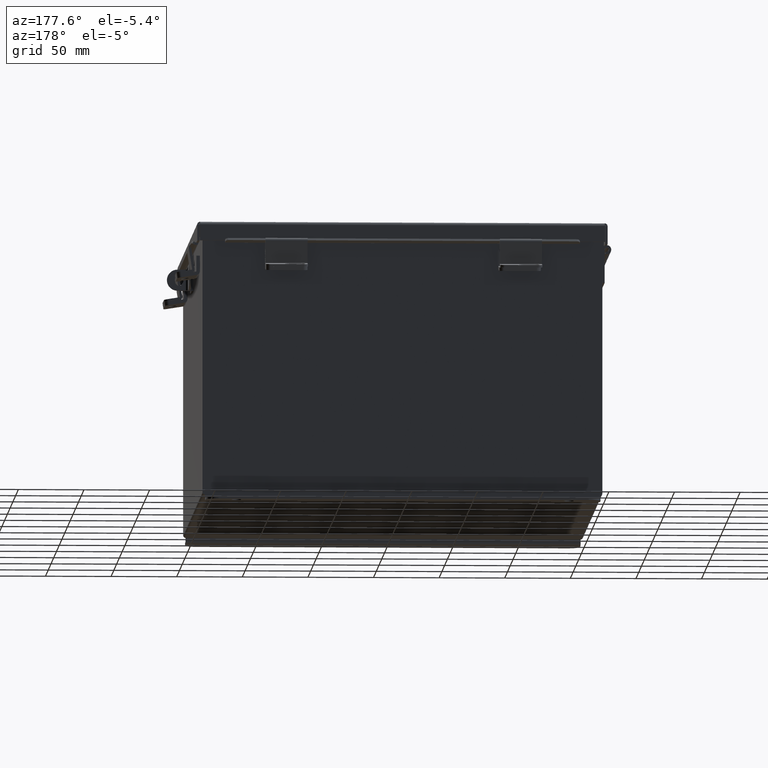
[diagram: clean part render]
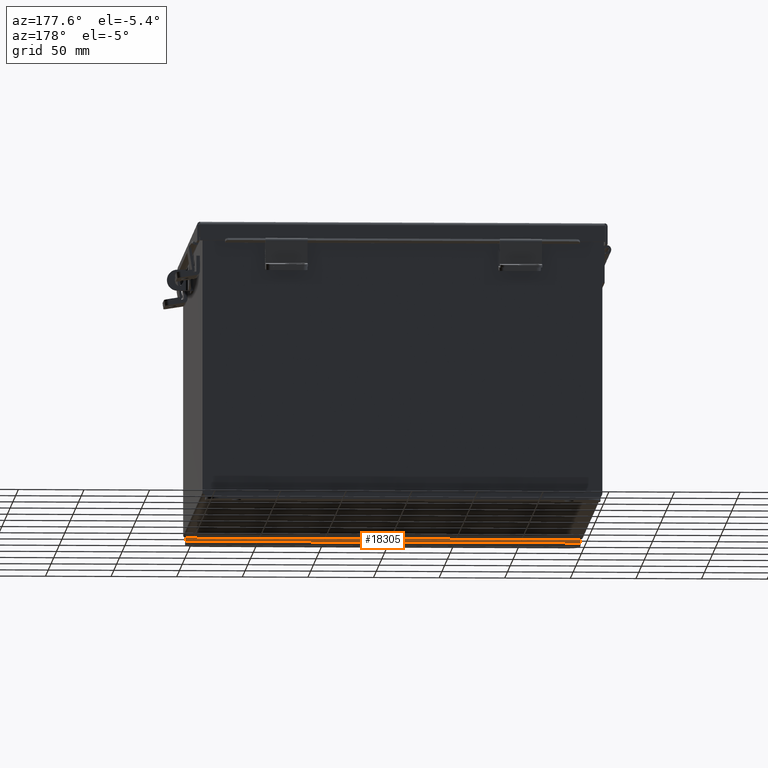
[diagram: same view with one face highlighted and labeled with its STEP entity id]
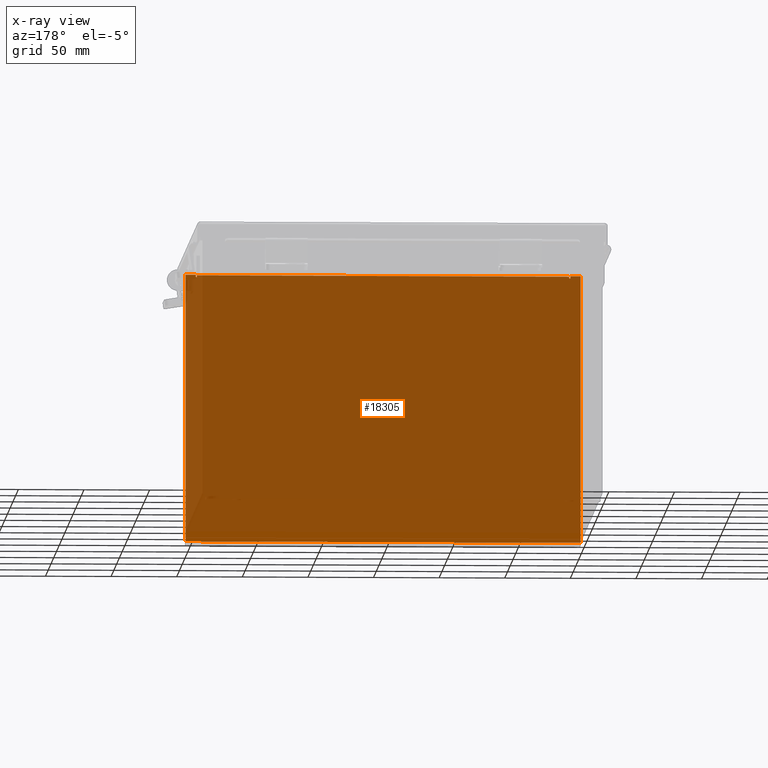
[diagram: x-ray of the same camera — body ghosted, the highlighted face saturated]
A machine part, auxiliary view. The second image highlights one B-rep face of the part: STEP entity #18305.
The next image is the same camera in x-ray: the body ghosted, the highlighted face saturated — about 96% of this face is hidden behind the body in this view.
In plain terms, the highlighted planar face has unit normal (-0, 1, -0).
Its self-contained STEP definition (entity closure, byte-faithful):
#339 = ORIENTED_EDGE ( 'NONE', *, *, #11427, .F. ) ;
#697 = EDGE_CURVE ( 'NONE', #5141, #15063, #16202, .T. ) ;
#810 = ORIENTED_EDGE ( 'NONE', *, *, #1234, .F. ) ;
#881 = ORIENTED_EDGE ( 'NONE', *, *, #1898, .F. ) ;
#1234 = EDGE_CURVE ( 'NONE', #5058, #7171, #7688, .T. ) ;
#1711 = CARTESIAN_POINT ( 'NONE',  ( 5.582299999999999200, -0.07469999999999769900, 3.912299999999998800 ) ) ;
#1820 = DIRECTION ( 'NONE',  ( 1.000000000000000000, 0.0000000000000000000, 0.0000000000000000000 ) ) ;
#1898 = EDGE_CURVE ( 'NONE', #15063, #18565, #9700, .T. ) ;
#1912 = CARTESIAN_POINT ( 'NONE',  ( 5.600974999999998300, -0.07469999999999769900, 3.874949999999998300 ) ) ;
#1932 = VERTEX_POINT ( 'NONE', #17407 ) ;
#1985 = DIRECTION ( 'NONE',  ( -0.0000000000000000000, -0.0000000000000000000, 1.000000000000000000 ) ) ;
#2568 = FACE_OUTER_BOUND ( 'NONE', #15110, .T. ) ;
#2753 = CARTESIAN_POINT ( 'NONE',  ( 5.925299999999999100, -0.07470000000000008600, -4.099299999999999500 ) ) ;
#2892 = VERTEX_POINT ( 'NONE', #18023 ) ;
#3077 = VECTOR ( 'NONE', #9722, 39.37007874015748100 ) ;
#3206 = CARTESIAN_POINT ( 'NONE',  ( 5.582299999999999200, -0.07470000000000000300, 3.874949999999998300 ) ) ;
#3331 = VECTOR ( 'NONE', #10336, 39.37007874015748100 ) ;
#3357 = ORIENTED_EDGE ( 'NONE', *, *, #15335, .F. ) ;
#3382 = DIRECTION ( 'NONE',  ( 0.0000000000000000000, 0.0000000000000000000, -1.000000000000000000 ) ) ;
#3534 = VECTOR ( 'NONE', #11687, 39.37007874015748100 ) ;
#3880 = CARTESIAN_POINT ( 'NONE',  ( 5.619650000000000000, -0.07470000000000000300, 3.925299999999999600 ) ) ;
#4093 = CARTESIAN_POINT ( 'NONE',  ( 0.0000000000000000000, -0.07470000000000000300, 0.0000000000000000000 ) ) ;
#4237 = EDGE_CURVE ( 'NONE', #12273, #12524, #9405, .T. ) ;
#4556 = CARTESIAN_POINT ( 'NONE',  ( -5.582300000000000900, -0.07469999999999769900, 3.912299999999998800 ) ) ;
#4625 = VECTOR ( 'NONE', #9966, 39.37007874015748100 ) ;
#4650 = CARTESIAN_POINT ( 'NONE',  ( -5.582300000000000000, -0.07470000000000000300, 3.874949999999998300 ) ) ;
#4833 = CARTESIAN_POINT ( 'NONE',  ( 5.619649999999999100, -0.07470000000000000300, 3.874949999999998300 ) ) ;
#5058 = VERTEX_POINT ( 'NONE', #3206 ) ;
#5141 = VERTEX_POINT ( 'NONE', #12000 ) ;
#5493 = CARTESIAN_POINT ( 'NONE',  ( -5.619650000000000000, -0.07470000000000000300, 3.874949999999998300 ) ) ;
#5535 = DIRECTION ( 'NONE',  ( 0.0000000000000000000, -0.0000000000000000000, -1.000000000000000000 ) ) ;
#5889 = DIRECTION ( 'NONE',  ( 0.0000000000000000000, -1.000000000000000000, 0.0000000000000000000 ) ) ;
#6632 = DIRECTION ( 'NONE',  ( 1.000000000000000000, -0.0000000000000000000, -0.0000000000000000000 ) ) ;
#7127 = EDGE_CURVE ( 'NONE', #18565, #1932, #18539, .T. ) ;
#7171 = VERTEX_POINT ( 'NONE', #4833 ) ;
#7496 = EDGE_CURVE ( 'NONE', #7171, #8093, #12715, .T. ) ;
#7580 = CARTESIAN_POINT ( 'NONE',  ( -5.582300000000000000, -0.07469999999999769900, 3.874949999999998300 ) ) ;
#7688 = CIRCLE ( 'NONE', #14036, 0.01867500000000003900 ) ;
#7942 = CARTESIAN_POINT ( 'NONE',  ( -5.619650000000000000, -0.07469999999999885100, 3.925299999999999600 ) ) ;
#8093 = VERTEX_POINT ( 'NONE', #3880 ) ;
#8534 = VECTOR ( 'NONE', #1820, 39.37007874015748100 ) ;
#8715 = AXIS2_PLACEMENT_3D ( 'NONE', #14458, #5889, #15882 ) ;
#8755 = VECTOR ( 'NONE', #11303, 39.37007874015748100 ) ;
#8852 = VERTEX_POINT ( 'NONE', #15736 ) ;
#9125 = ORIENTED_EDGE ( 'NONE', *, *, #4237, .T. ) ;
#9210 = LINE ( 'NONE', #18465, #8755 ) ;
#9405 = LINE ( 'NONE', #13769, #16069 ) ;
#9700 = CIRCLE ( 'NONE', #8715, 0.01867500000000003900 ) ;
#9722 = DIRECTION ( 'NONE',  ( 1.000000000000000000, 0.0000000000000000000, 0.0000000000000000000 ) ) ;
#9742 = PLANE ( 'NONE',  #9964 ) ;
#9773 = ORIENTED_EDGE ( 'NONE', *, *, #12712, .F. ) ;
#9955 = CARTESIAN_POINT ( 'NONE',  ( -5.925300000000000000, -0.07470000000000008600, -4.099299999999999500 ) ) ;
#9964 = AXIS2_PLACEMENT_3D ( 'NONE', #4093, #14113, #5535 ) ;
#9966 = DIRECTION ( 'NONE',  ( 2.170286390199955400E-014, -2.272018564740578300E-014, 1.000000000000000000 ) ) ;
#10095 = ORIENTED_EDGE ( 'NONE', *, *, #7127, .F. ) ;
#10336 = DIRECTION ( 'NONE',  ( 0.0000000000000000000, 0.0000000000000000000, -1.000000000000000000 ) ) ;
#10347 = VECTOR ( 'NONE', #1985, 39.37007874015748100 ) ;
#10441 = CARTESIAN_POINT ( 'NONE',  ( -5.925300000000001800, -0.07470000000000000300, 3.925299999999999600 ) ) ;
#11050 = CARTESIAN_POINT ( 'NONE',  ( 5.925299999999999100, -0.07470000000000000300, 3.925299999999999600 ) ) ;
#11177 = LINE ( 'NONE', #4556, #3534 ) ;
#11303 = DIRECTION ( 'NONE',  ( 0.0000000000000000000, 0.0000000000000000000, -1.000000000000000000 ) ) ;
#11427 = EDGE_CURVE ( 'NONE', #12273, #2892, #17518, .T. ) ;
#11687 = DIRECTION ( 'NONE',  ( 1.000000000000000000, 0.0000000000000000000, 0.0000000000000000000 ) ) ;
#11987 = DIRECTION ( 'NONE',  ( 0.0000000000000000000, -1.000000000000000000, 0.0000000000000000000 ) ) ;
#12000 = CARTESIAN_POINT ( 'NONE',  ( -5.619650000000000000, -0.07470000000000000300, 3.925299999999999600 ) ) ;
#12273 = VERTEX_POINT ( 'NONE', #9955 ) ;
#12524 = VERTEX_POINT ( 'NONE', #2753 ) ;
#12712 = EDGE_CURVE ( 'NONE', #8852, #5058, #17230, .T. ) ;
#12715 = LINE ( 'NONE', #18540, #4625 ) ;
#12800 = LINE ( 'NONE', #10441, #8534 ) ;
#13215 = ORIENTED_EDGE ( 'NONE', *, *, #16738, .F. ) ;
#13353 = EDGE_CURVE ( 'NONE', #1932, #8852, #11177, .T. ) ;
#13692 = DIRECTION ( 'NONE',  ( 0.0000000000000000000, 2.272018564740578300E-014, -1.000000000000000000 ) ) ;
#13769 = CARTESIAN_POINT ( 'NONE',  ( -5.925300000000001800, -0.07470000000000008600, -4.099299999999999500 ) ) ;
#14036 = AXIS2_PLACEMENT_3D ( 'NONE', #1912, #11987, #3382 ) ;
#14113 = DIRECTION ( 'NONE',  ( 0.0000000000000000000, -1.000000000000000000, 0.0000000000000000000 ) ) ;
#14453 = ORIENTED_EDGE ( 'NONE', *, *, #13353, .F. ) ;
#14458 = CARTESIAN_POINT ( 'NONE',  ( -5.600975000000000000, -0.07469999999999769900, 3.874949999999998300 ) ) ;
#14709 = DIRECTION ( 'NONE',  ( 0.0000000000000000000, 0.0000000000000000000, 1.000000000000000000 ) ) ;
#15063 = VERTEX_POINT ( 'NONE', #5493 ) ;
#15076 = ORIENTED_EDGE ( 'NONE', *, *, #697, .F. ) ;
#15110 = EDGE_LOOP ( 'NONE', ( #881, #15076, #13215, #339, #9125, #16091, #3357, #17084, #810, #9773, #14453, #10095 ) ) ;
#15335 = EDGE_CURVE ( 'NONE', #8093, #18012, #12800, .T. ) ;
#15382 = CARTESIAN_POINT ( 'NONE',  ( -5.925300000000001800, -0.07470000000000000300, 3.925299999999999600 ) ) ;
#15618 = EDGE_CURVE ( 'NONE', #18012, #12524, #9210, .T. ) ;
#15736 = CARTESIAN_POINT ( 'NONE',  ( 5.582299999999999200, -0.07470000000000000300, 3.912299999999998800 ) ) ;
#15738 = VECTOR ( 'NONE', #13692, 39.37007874015748100 ) ;
#15882 = DIRECTION ( 'NONE',  ( 0.0000000000000000000, 0.0000000000000000000, -1.000000000000000000 ) ) ;
#16069 = VECTOR ( 'NONE', #6632, 39.37007874015748100 ) ;
#16091 = ORIENTED_EDGE ( 'NONE', *, *, #15618, .F. ) ;
#16202 = LINE ( 'NONE', #7942, #15738 ) ;
#16280 = CARTESIAN_POINT ( 'NONE',  ( -5.925300000000001800, -0.07470000000000000300, 3.925299999999999600 ) ) ;
#16738 = EDGE_CURVE ( 'NONE', #2892, #5141, #17900, .T. ) ;
#17084 = ORIENTED_EDGE ( 'NONE', *, *, #7496, .F. ) ;
#17230 = LINE ( 'NONE', #1711, #3331 ) ;
#17407 = CARTESIAN_POINT ( 'NONE',  ( -5.582300000000000000, -0.07470000000000000300, 3.912299999999998800 ) ) ;
#17518 = LINE ( 'NONE', #16280, #10347 ) ;
#17900 = LINE ( 'NONE', #15382, #3077 ) ;
#18012 = VERTEX_POINT ( 'NONE', #11050 ) ;
#18023 = CARTESIAN_POINT ( 'NONE',  ( -5.925300000000001800, -0.07470000000000000300, 3.925299999999999600 ) ) ;
#18089 = VECTOR ( 'NONE', #14709, 39.37007874015748100 ) ;
#18305 = ADVANCED_FACE ( 'NONE', ( #2568 ), #9742, .T. ) ;
#18465 = CARTESIAN_POINT ( 'NONE',  ( 5.925299999999999100, -0.07470000000000000300, 3.925299999999999600 ) ) ;
#18539 = LINE ( 'NONE', #7580, #18089 ) ;
#18540 = CARTESIAN_POINT ( 'NONE',  ( 5.619649999999999100, -0.07469999999999769900, 3.874949999999998300 ) ) ;
#18565 = VERTEX_POINT ( 'NONE', #4650 ) ;